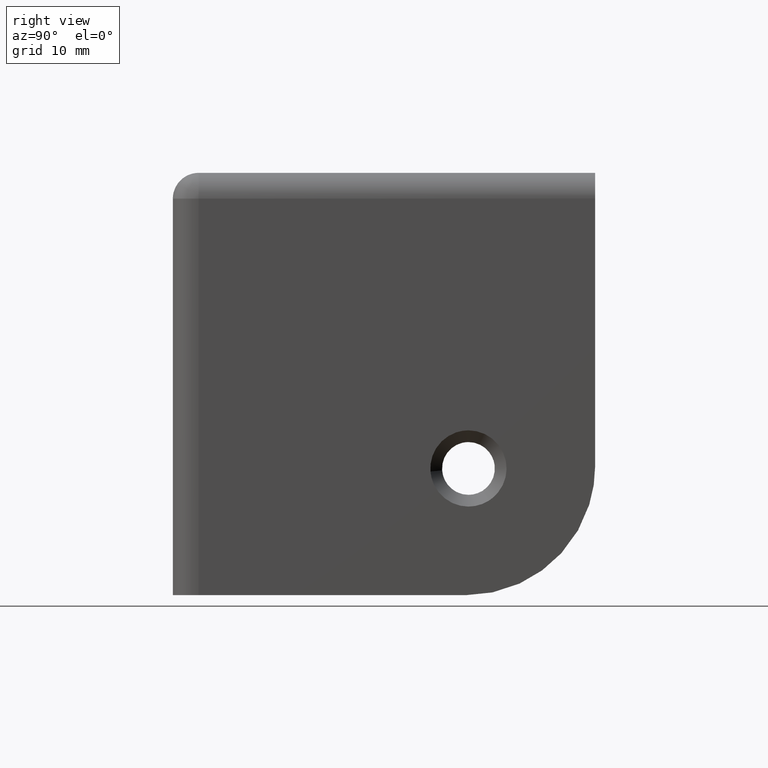
[diagram: clean part render]
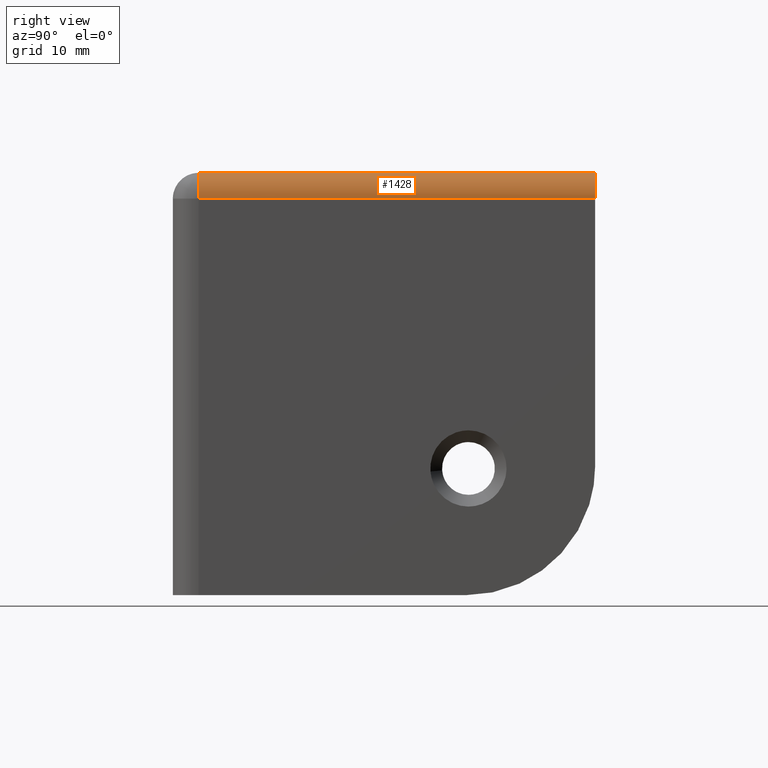
[diagram: same view with one face highlighted and labeled with its STEP entity id]
A machine part, right view. The second image highlights one B-rep face of the part: STEP entity #1428.
In plain terms, the highlighted face is a freeform B-spline surface patch.
Its self-contained STEP definition (entity closure, byte-faithful):
#1298=CARTESIAN_POINT('',(0.0,2.200000000000000,33.799999999999997));
#1299=VERTEX_POINT('',#1298);
#1352=CARTESIAN_POINT('',(-2.200000000000000,2.200000000000000,36.0));
#1353=VERTEX_POINT('',#1352);
#1354=CARTESIAN_POINT('',(0.0,2.200000000000000,33.799999999999997));
#1355=CARTESIAN_POINT('',(0.0,2.200000000000001,36.0));
#1356=CARTESIAN_POINT('',(-2.200000000000000,2.200000000000000,36.0));
#1364=(BOUNDED_CURVE()B_SPLINE_CURVE(2,(#1354,#1355,#1356),.UNSPECIFIED.,.F.,.U.)CURVE()GEOMETRIC_REPRESENTATION_ITEM()QUASI_UNIFORM_CURVE()RATIONAL_B_SPLINE_CURVE((1.0,0.707106781186548,1.0))REPRESENTATION_ITEM(''));
#1365=EDGE_CURVE('',#1299,#1353,#1364,.T.);
#1384=CARTESIAN_POINT('',(-2.219198378096421,36.845000000000013,35.999916230741171));
#1385=CARTESIAN_POINT('',(-2.219198378096421,1.333874999999996,35.999916230741171));
#1386=CARTESIAN_POINT('',(0.139922952425851,36.844999999999999,36.020503970694989));
#1387=CARTESIAN_POINT('',(0.139922952425851,1.333874999999996,36.020503970694989));
#1388=CARTESIAN_POINT('',(-0.004103443471898,36.845000000000013,33.665693213023310));
#1389=CARTESIAN_POINT('',(-0.004103443471898,1.333874999999996,33.665693213023310));
#1397=(BOUNDED_SURFACE()B_SPLINE_SURFACE(1,2,((#1384,#1386,#1388),(#1385,#1387,#1389)),.UNSPECIFIED.,.F.,.F.,.U.)B_SPLINE_SURFACE_WITH_KNOTS((2,2),(3,3),(0.0,35.511125000000007),(0.0,3.826348899656208),.UNSPECIFIED.)GEOMETRIC_REPRESENTATION_ITEM()RATIONAL_B_SPLINE_SURFACE(((1.0,0.681998360062499,1.0),(1.0,0.681998360062499,1.0)))REPRESENTATION_ITEM('')SURFACE());
#1398=CARTESIAN_POINT('',(-2.200000000000000,36.0,36.0));
#1399=VERTEX_POINT('',#1398);
#1400=CARTESIAN_POINT('',(0.0,36.0,33.799999999999997));
#1401=VERTEX_POINT('',#1400);
#1402=CARTESIAN_POINT('',(-2.200000000000000,36.0,36.0));
#1403=CARTESIAN_POINT('',(0.0,36.0,36.0));
#1404=CARTESIAN_POINT('',(0.0,36.0,33.799999999999997));
#1412=(BOUNDED_CURVE()B_SPLINE_CURVE(2,(#1402,#1403,#1404),.UNSPECIFIED.,.F.,.U.)CURVE()GEOMETRIC_REPRESENTATION_ITEM()QUASI_UNIFORM_CURVE()RATIONAL_B_SPLINE_CURVE((1.0,0.707106781186548,1.0))REPRESENTATION_ITEM(''));
#1413=EDGE_CURVE('',#1399,#1401,#1412,.T.);
#1414=ORIENTED_EDGE('',*,*,#1413,.F.);
#1415=CARTESIAN_POINT('',(-2.200000000000000,2.200000000000000,36.0));
#1416=CARTESIAN_POINT('',(-2.200000000000000,36.0,36.0));
#1417=QUASI_UNIFORM_CURVE('',1,(#1415,#1416),.UNSPECIFIED.,.F.,.U.);
#1418=EDGE_CURVE('',#1353,#1399,#1417,.T.);
#1419=ORIENTED_EDGE('',*,*,#1418,.F.);
#1420=ORIENTED_EDGE('',*,*,#1365,.F.);
#1421=CARTESIAN_POINT('',(0.0,36.0,33.799999999999997));
#1422=CARTESIAN_POINT('',(0.0,2.200000000000000,33.799999999999997));
#1423=QUASI_UNIFORM_CURVE('',1,(#1421,#1422),.UNSPECIFIED.,.F.,.U.);
#1424=EDGE_CURVE('',#1401,#1299,#1423,.T.);
#1425=ORIENTED_EDGE('',*,*,#1424,.F.);
#1426=EDGE_LOOP('',(#1414,#1419,#1420,#1425));
#1427=FACE_OUTER_BOUND('',#1426,.T.);
#1428=ADVANCED_FACE('',(#1427),#1397,.T.);